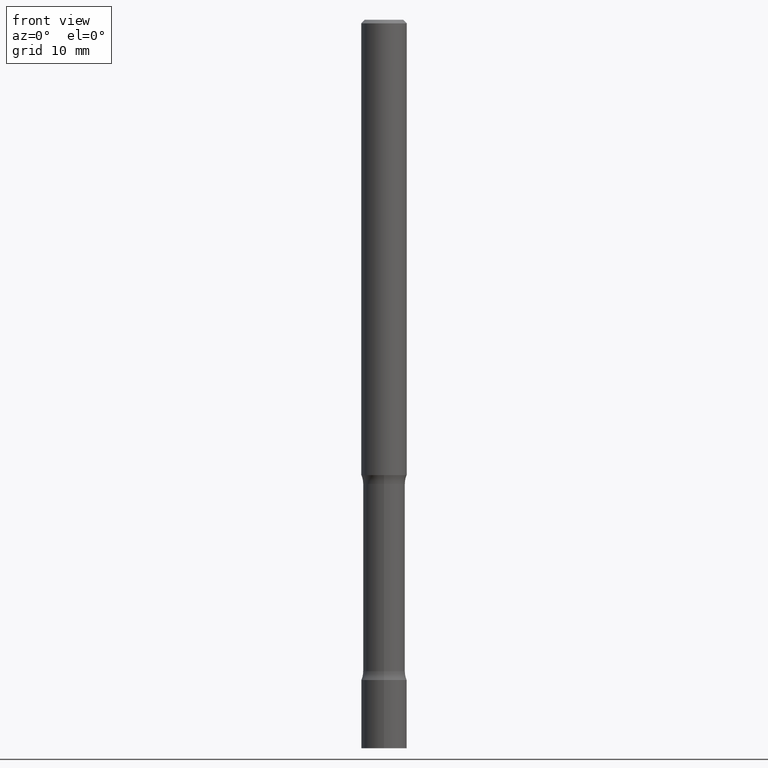
[diagram: clean part render]
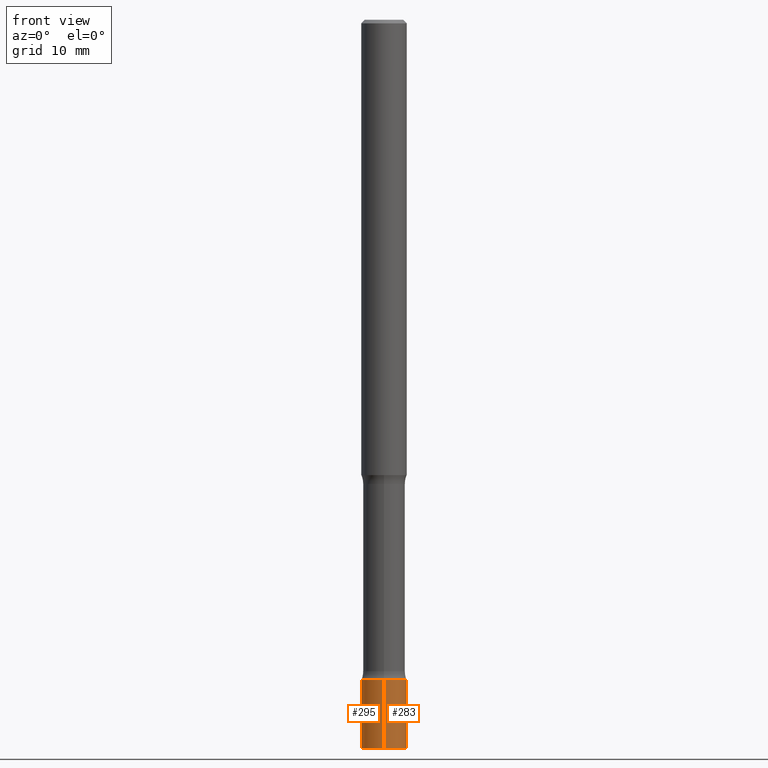
[diagram: same view with one multi-face feature highlighted, each face labeled with its STEP entity id]
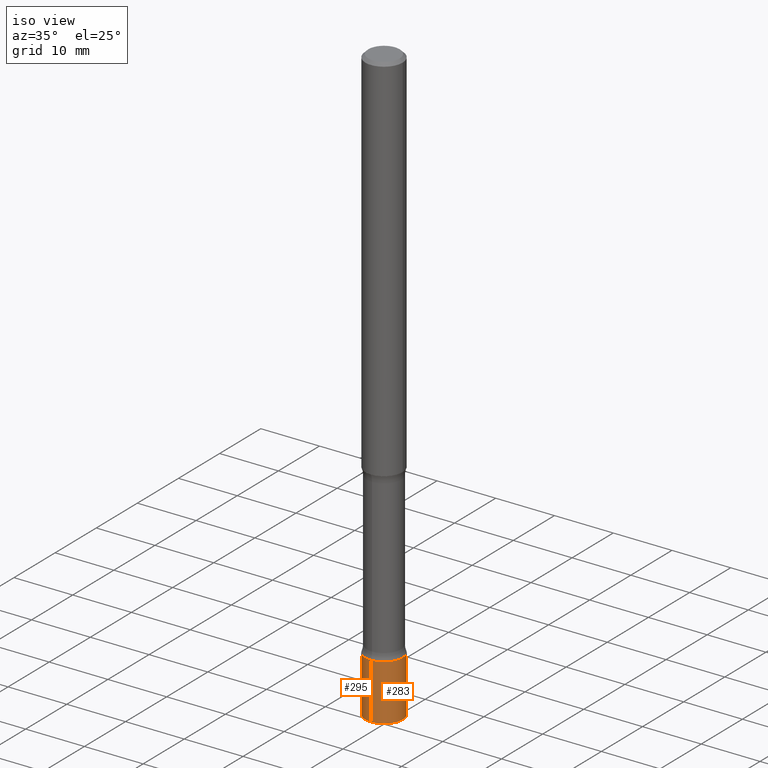
[diagram: same view with one multi-face feature highlighted, each face labeled with its STEP entity id]
A machine part, front view. The highlighted faces form ONE feature: a constant-radius fillet chain: 2 tangent blend faces with common blend radius 3.175 mm. The faces share edges in the B-rep.
A second angle (iso view) of the same feature is appended — it is thin or edge-on in the first view.
Their STEP definitions:
[1] entity #283 (Cylinder):
#7 = VERTEX_POINT ( 'NONE', #353 ) ;
#11 = ORIENTED_EDGE ( 'NONE', *, *, #17, .F. ) ;
#17 = EDGE_CURVE ( 'NONE', #7, #84, #345, .T. ) ;
#42 = DIRECTION ( 'NONE',  ( -2.445794110482725293E-29, 3.491015484573827856E-15, 1.000000000000000000 ) ) ;
#44 = VERTEX_POINT ( 'NONE', #257 ) ;
#62 = DIRECTION ( 'NONE',  ( -2.445794110482725293E-29, 3.491015484573827856E-15, 1.000000000000000000 ) ) ;
#81 = CARTESIAN_POINT ( 'NONE',  ( -8.728703347107832402E-16, -0.1250000000000000000, 4.363769355717284326E-16 ) ) ;
#84 = VERTEX_POINT ( 'NONE', #152 ) ;
#88 = EDGE_CURVE ( 'NONE', #44, #467, #475, .T. ) ;
#101 = EDGE_LOOP ( 'NONE', ( #281, #266, #11, #361 ) ) ;
#103 = DIRECTION ( 'NONE',  ( -6.982962677686265922E-15, -1.000000000000000000, 4.370956789862821938E-15 ) ) ;
#132 = VECTOR ( 'NONE', #142, 39.37007874015748143 ) ;
#136 = CARTESIAN_POINT ( 'NONE',  ( 8.881784197001251337E-16, 0.1250000000000000000, -4.363769355717284326E-16 ) ) ;
#139 = CARTESIAN_POINT ( 'NONE',  ( 0.000000000000000000, 0.000000000000000000, 0.000000000000000000 ) ) ;
#142 = DIRECTION ( 'NONE',  ( -2.445794110482725293E-29, 3.491015484573827856E-15, 1.000000000000000000 ) ) ;
#152 = CARTESIAN_POINT ( 'NONE',  ( 8.881784197002228539E-16, 0.1249999999999873157, -3.625000000000000444 ) ) ;
#168 = EDGE_CURVE ( 'NONE', #467, #84, #287, .T. ) ;
#179 = DIRECTION ( 'NONE',  ( -2.445794110482725293E-29, 3.491015484573827856E-15, 1.000000000000000000 ) ) ;
#257 = CARTESIAN_POINT ( 'NONE',  ( -8.728703347106854215E-16, -0.1250000000000139611, -3.999999999999999556 ) ) ;
#264 = CARTESIAN_POINT ( 'NONE',  ( 9.783176441930901173E-29, -1.396406193829530984E-14, -4.000000000000000000 ) ) ;
#266 = ORIENTED_EDGE ( 'NONE', *, *, #168, .T. ) ;
#281 = ORIENTED_EDGE ( 'NONE', *, *, #88, .T. ) ;
#283 = ADVANCED_FACE ( 'NONE', ( #418 ), #337, .T. ) ;
#287 = LINE ( 'NONE', #136, #449 ) ;
#316 = DIRECTION ( 'NONE',  ( -2.445794110482725293E-29, 3.491015484573827856E-15, 1.000000000000000000 ) ) ;
#337 = CYLINDRICAL_SURFACE ( 'NONE', #490, 0.1250000000000000000 ) ;
#345 = CIRCLE ( 'NONE', #383, 0.1249999999999999861 ) ;
#347 = LINE ( 'NONE', #81, #132 ) ;
#348 = EDGE_CURVE ( 'NONE', #44, #7, #347, .T. ) ;
#353 = CARTESIAN_POINT ( 'NONE',  ( -8.728703347106943948E-16, -0.1250000000000126288, -3.624999999999999112 ) ) ;
#361 = ORIENTED_EDGE ( 'NONE', *, *, #348, .F. ) ;
#368 = CARTESIAN_POINT ( 'NONE',  ( 8.881784197002183179E-16, 0.1249999999999860251, -4.000000000000000888 ) ) ;
#370 = AXIS2_PLACEMENT_3D ( 'NONE', #264, #42, #386 ) ;
#383 = AXIS2_PLACEMENT_3D ( 'NONE', #439, #316, #103 ) ;
#386 = DIRECTION ( 'NONE',  ( -6.982962677686265922E-15, -1.000000000000000000, 4.370956789862821150E-15 ) ) ;
#418 = FACE_OUTER_BOUND ( 'NONE', #101, .T. ) ;
#424 = DIRECTION ( 'NONE',  ( -6.982962677686265922E-15, -1.000000000000000000, 3.491015484573827461E-15 ) ) ;
#439 = CARTESIAN_POINT ( 'NONE',  ( 8.866003650499878838E-29, -1.265493113158012519E-14, -3.624999999999999556 ) ) ;
#449 = VECTOR ( 'NONE', #62, 39.37007874015748143 ) ;
#467 = VERTEX_POINT ( 'NONE', #368 ) ;
#475 = CIRCLE ( 'NONE', #370, 0.1250000000000000000 ) ;
#490 = AXIS2_PLACEMENT_3D ( 'NONE', #139, #179, #424 ) ;
[2] entity #295 (Cylinder):
#3 = ORIENTED_EDGE ( 'NONE', *, *, #168, .F. ) ;
#7 = VERTEX_POINT ( 'NONE', #353 ) ;
#10 = CIRCLE ( 'NONE', #194, 0.1249999999999999861 ) ;
#44 = VERTEX_POINT ( 'NONE', #257 ) ;
#46 = CIRCLE ( 'NONE', #331, 0.1250000000000000000 ) ;
#47 = DIRECTION ( 'NONE',  ( -6.982962677686265922E-15, -1.000000000000000000, 4.370956789862821150E-15 ) ) ;
#50 = DIRECTION ( 'NONE',  ( -6.982962677686265922E-15, -1.000000000000000000, 4.370956789862821938E-15 ) ) ;
#62 = DIRECTION ( 'NONE',  ( -2.445794110482725293E-29, 3.491015484573827856E-15, 1.000000000000000000 ) ) ;
#73 = DIRECTION ( 'NONE',  ( -2.445794110482725293E-29, 3.491015484573827856E-15, 1.000000000000000000 ) ) ;
#81 = CARTESIAN_POINT ( 'NONE',  ( -8.728703347107832402E-16, -0.1250000000000000000, 4.363769355717284326E-16 ) ) ;
#84 = VERTEX_POINT ( 'NONE', #152 ) ;
#112 = ORIENTED_EDGE ( 'NONE', *, *, #357, .F. ) ;
#122 = ORIENTED_EDGE ( 'NONE', *, *, #348, .T. ) ;
#132 = VECTOR ( 'NONE', #142, 39.37007874015748143 ) ;
#136 = CARTESIAN_POINT ( 'NONE',  ( 8.881784197001251337E-16, 0.1250000000000000000, -4.363769355717284326E-16 ) ) ;
#142 = DIRECTION ( 'NONE',  ( -2.445794110482725293E-29, 3.491015484573827856E-15, 1.000000000000000000 ) ) ;
#152 = CARTESIAN_POINT ( 'NONE',  ( 8.881784197002228539E-16, 0.1249999999999873157, -3.625000000000000444 ) ) ;
#155 = CARTESIAN_POINT ( 'NONE',  ( 8.866003650499878838E-29, -1.265493113158012519E-14, -3.624999999999999556 ) ) ;
#168 = EDGE_CURVE ( 'NONE', #467, #84, #287, .T. ) ;
#185 = CARTESIAN_POINT ( 'NONE',  ( 9.783176441930901173E-29, -1.396406193829530984E-14, -4.000000000000000000 ) ) ;
#194 = AXIS2_PLACEMENT_3D ( 'NONE', #155, #73, #50 ) ;
#207 = DIRECTION ( 'NONE',  ( -2.445794110482725293E-29, 3.491015484573827856E-15, 1.000000000000000000 ) ) ;
#236 = EDGE_LOOP ( 'NONE', ( #3, #323, #122, #112 ) ) ;
#257 = CARTESIAN_POINT ( 'NONE',  ( -8.728703347106854215E-16, -0.1250000000000139611, -3.999999999999999556 ) ) ;
#287 = LINE ( 'NONE', #136, #449 ) ;
#295 = ADVANCED_FACE ( 'NONE', ( #492 ), #452, .T. ) ;
#323 = ORIENTED_EDGE ( 'NONE', *, *, #416, .T. ) ;
#331 = AXIS2_PLACEMENT_3D ( 'NONE', #185, #508, #47 ) ;
#339 = DIRECTION ( 'NONE',  ( -6.982962677686265922E-15, -1.000000000000000000, 3.491015484573827461E-15 ) ) ;
#347 = LINE ( 'NONE', #81, #132 ) ;
#348 = EDGE_CURVE ( 'NONE', #44, #7, #347, .T. ) ;
#353 = CARTESIAN_POINT ( 'NONE',  ( -8.728703347106943948E-16, -0.1250000000000126288, -3.624999999999999112 ) ) ;
#357 = EDGE_CURVE ( 'NONE', #84, #7, #10, .T. ) ;
#368 = CARTESIAN_POINT ( 'NONE',  ( 8.881784197002183179E-16, 0.1249999999999860251, -4.000000000000000888 ) ) ;
#381 = CARTESIAN_POINT ( 'NONE',  ( 0.000000000000000000, 0.000000000000000000, 0.000000000000000000 ) ) ;
#416 = EDGE_CURVE ( 'NONE', #467, #44, #46, .T. ) ;
#449 = VECTOR ( 'NONE', #62, 39.37007874015748143 ) ;
#450 = AXIS2_PLACEMENT_3D ( 'NONE', #381, #207, #339 ) ;
#452 = CYLINDRICAL_SURFACE ( 'NONE', #450, 0.1250000000000000000 ) ;
#467 = VERTEX_POINT ( 'NONE', #368 ) ;
#492 = FACE_OUTER_BOUND ( 'NONE', #236, .T. ) ;
#508 = DIRECTION ( 'NONE',  ( -2.445794110482725293E-29, 3.491015484573827856E-15, 1.000000000000000000 ) ) ;